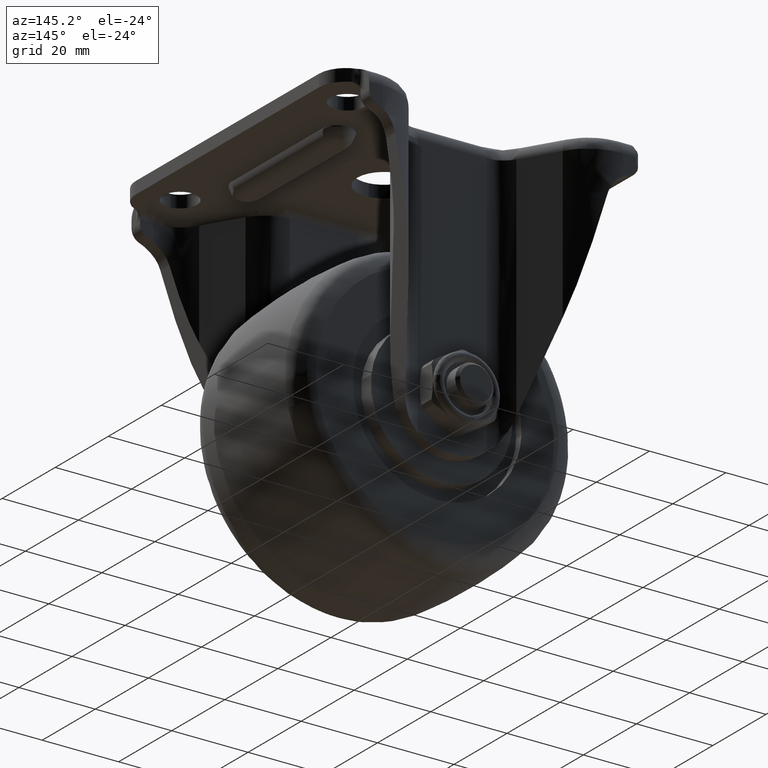
[diagram: clean part render]
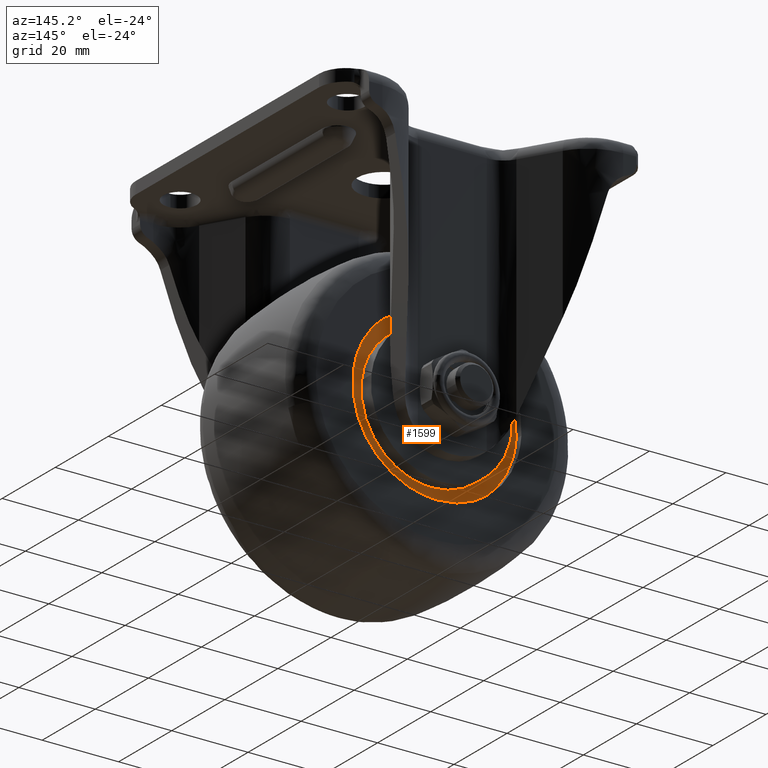
[diagram: same view with one face highlighted and labeled with its STEP entity id]
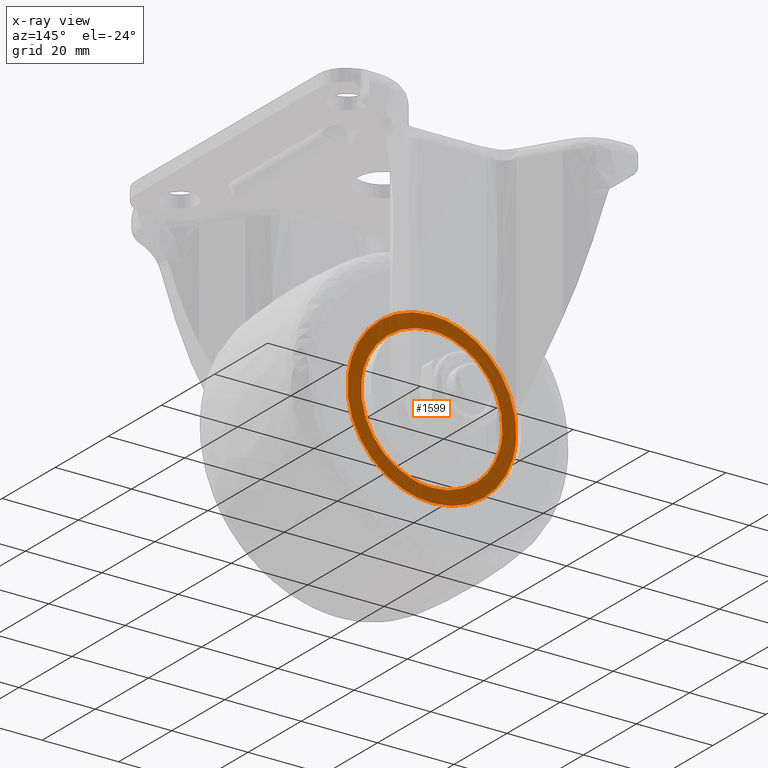
[diagram: x-ray of the same camera — body ghosted, the highlighted face saturated]
A machine part, auxiliary view. The second image highlights one B-rep face of the part: STEP entity #1599.
The next image is the same camera in x-ray: the body ghosted, the highlighted face saturated — about 6% of this face is hidden behind the body in this view.
In plain terms, the highlighted face is a freeform B-spline surface patch.
Its self-contained STEP definition (entity closure, byte-faithful):
#472=CARTESIAN_POINT('',(-22.078743534378859,18.0,-63.850380754807773));
#473=VERTEX_POINT('',#472);
#479=CARTESIAN_POINT('',(0.0,18.0,-84.620001000000002));
#480=VERTEX_POINT('',#479);
#481=CARTESIAN_POINT('',(0.0,18.0,-84.620001000000002));
#482=CARTESIAN_POINT('',(-20.808431416299474,18.000000000000004,-84.620001000000016));
#483=CARTESIAN_POINT('',(-22.078743534378852,18.000000000000004,-63.850380754807780));
#491=(BOUNDED_CURVE()B_SPLINE_CURVE(2,(#481,#482,#483),.UNSPECIFIED.,.F.,.U.)B_SPLINE_CURVE_WITH_KNOTS((3,3),(0.500000000000000,0.739333063843685),.UNSPECIFIED.)CURVE()GEOMETRIC_REPRESENTATION_ITEM()RATIONAL_B_SPLINE_CURVE((1.0,0.719603874249350,0.976072259425118))REPRESENTATION_ITEM(''));
#492=EDGE_CURVE('',#480,#473,#491,.T.);
#494=CARTESIAN_POINT('',(21.965373121239349,18.0,-59.889094432080142));
#495=VERTEX_POINT('',#494);
#496=CARTESIAN_POINT('',(21.965373121239356,18.0,-59.889094432080142));
#497=CARTESIAN_POINT('',(22.120000999999995,18.000000000000004,-61.189968386919674));
#498=CARTESIAN_POINT('',(22.120000999999998,18.0,-62.500000000000000));
#499=CARTESIAN_POINT('',(22.120000999999998,18.000000000000007,-84.620001000000002));
#500=CARTESIAN_POINT('',(0.0,18.0,-84.620001000000002));
#508=(BOUNDED_CURVE()B_SPLINE_CURVE(2,(#496,#497,#498,#499,#500),.UNSPECIFIED.,.F.,.U.)B_SPLINE_CURVE_WITH_KNOTS((3,2,3),(0.229562564465185,0.250000000000000,0.500000000000000),.UNSPECIFIED.)CURVE()GEOMETRIC_REPRESENTATION_ITEM()RATIONAL_B_SPLINE_CURVE((0.956026932452786,0.976056054887663,1.0,0.707106781186547,1.0))REPRESENTATION_ITEM(''));
#509=EDGE_CURVE('',#495,#480,#508,.T.);
#553=CARTESIAN_POINT('',(0.0,18.0,-40.379998999999998));
#554=VERTEX_POINT('',#553);
#555=CARTESIAN_POINT('',(0.0,18.0,-40.379998999999998));
#556=CARTESIAN_POINT('',(19.646432049422355,18.000000000000004,-40.379998999999998));
#557=CARTESIAN_POINT('',(21.965373121239356,18.0,-59.889094432080142));
#565=(BOUNDED_CURVE()B_SPLINE_CURVE(2,(#555,#556,#557),.UNSPECIFIED.,.F.,.U.)B_SPLINE_CURVE_WITH_KNOTS((3,3),(0.0,0.229562564465185),.UNSPECIFIED.)CURVE()GEOMETRIC_REPRESENTATION_ITEM()RATIONAL_B_SPLINE_CURVE((1.0,0.731050726298885,0.956026932452786))REPRESENTATION_ITEM(''));
#566=EDGE_CURVE('',#554,#495,#565,.T.);
#568=CARTESIAN_POINT('',(-22.078743534378852,18.000000000000004,-63.850380754807780));
#569=CARTESIAN_POINT('',(-22.120001000000006,18.000000000000004,-63.175820636115517));
#570=CARTESIAN_POINT('',(-22.120000999999998,18.0,-62.500000000000000));
#571=CARTESIAN_POINT('',(-22.120000999999998,18.000000000000007,-40.379998999999991));
#572=CARTESIAN_POINT('',(0.0,18.0,-40.379998999999998));
#580=(BOUNDED_CURVE()B_SPLINE_CURVE(2,(#568,#569,#570,#571,#572),.UNSPECIFIED.,.F.,.U.)B_SPLINE_CURVE_WITH_KNOTS((3,2,3),(0.739333063843685,0.750000000000000,1.0),.UNSPECIFIED.)CURVE()GEOMETRIC_REPRESENTATION_ITEM()RATIONAL_B_SPLINE_CURVE((0.976072259425118,0.987502906937197,1.0,0.707106781186547,1.0))REPRESENTATION_ITEM(''));
#581=EDGE_CURVE('',#473,#554,#580,.T.);
#624=CARTESIAN_POINT('',(18.370679100404381,17.999999999999091,-60.316390742514258));
#625=VERTEX_POINT('',#624);
#626=CARTESIAN_POINT('',(0.0,18.0,-81.0));
#627=VERTEX_POINT('',#626);
#628=CARTESIAN_POINT('',(18.370679100404384,17.999999999999091,-60.316390742514258));
#629=CARTESIAN_POINT('',(18.499999999999996,18.0,-61.404365955574157));
#630=CARTESIAN_POINT('',(18.500000000000000,18.0,-62.500000000000000));
#631=CARTESIAN_POINT('',(18.500000000000000,18.000000000000007,-81.0));
#632=CARTESIAN_POINT('',(0.0,18.0,-81.0));
#640=(BOUNDED_CURVE()B_SPLINE_CURVE(2,(#628,#629,#630,#631,#632),.UNSPECIFIED.,.F.,.U.)B_SPLINE_CURVE_WITH_KNOTS((3,2,3),(0.229562695076233,0.250000000000000,0.500000000000000),.UNSPECIFIED.)CURVE()GEOMETRIC_REPRESENTATION_ITEM()RATIONAL_B_SPLINE_CURVE((0.956027188456166,0.976056207908023,1.0,0.707106781186548,1.0))REPRESENTATION_ITEM(''));
#641=EDGE_CURVE('',#625,#627,#640,.T.);
#643=CARTESIAN_POINT('',(-18.465494910213920,18.000000000000679,-63.629379351907680));
#644=VERTEX_POINT('',#643);
#645=CARTESIAN_POINT('',(0.0,18.0,-81.0));
#646=CARTESIAN_POINT('',(-17.403079828192418,18.000000000000004,-80.999999999999986));
#647=CARTESIAN_POINT('',(-18.465494910213920,18.000000000000679,-63.629379351907687));
#655=(BOUNDED_CURVE()B_SPLINE_CURVE(2,(#645,#646,#647),.UNSPECIFIED.,.F.,.U.)B_SPLINE_CURVE_WITH_KNOTS((3,3),(0.500000000000000,0.739333136321181),.UNSPECIFIED.)CURVE()GEOMETRIC_REPRESENTATION_ITEM()RATIONAL_B_SPLINE_CURVE((1.0,0.719603789336682,0.976072414758377))REPRESENTATION_ITEM(''));
#656=EDGE_CURVE('',#627,#644,#655,.T.);
#723=CARTESIAN_POINT('',(0.0,18.0,-44.0));
#724=VERTEX_POINT('',#723);
#725=CARTESIAN_POINT('',(0.0,18.0,-44.0));
#726=CARTESIAN_POINT('',(16.431250422831418,18.000000000000007,-44.000000000000007));
#727=CARTESIAN_POINT('',(18.370679100404384,17.999999999999091,-60.316390742514258));
#735=(BOUNDED_CURVE()B_SPLINE_CURVE(2,(#725,#726,#727),.UNSPECIFIED.,.F.,.U.)B_SPLINE_CURVE_WITH_KNOTS((3,3),(0.0,0.229562695076233),.UNSPECIFIED.)CURVE()GEOMETRIC_REPRESENTATION_ITEM()RATIONAL_B_SPLINE_CURVE((1.0,0.731050573278525,0.956027188456166))REPRESENTATION_ITEM(''));
#736=EDGE_CURVE('',#724,#625,#735,.T.);
#770=CARTESIAN_POINT('',(-18.465494910213920,18.000000000000679,-63.629379351907687));
#771=CARTESIAN_POINT('',(-18.500000000000000,18.0,-63.065216780163396));
#772=CARTESIAN_POINT('',(-18.500000000000000,18.0,-62.500000000000000));
#773=CARTESIAN_POINT('',(-18.500000000000000,18.000000000000007,-43.999999999999993));
#774=CARTESIAN_POINT('',(0.0,18.0,-44.0));
#782=(BOUNDED_CURVE()B_SPLINE_CURVE(2,(#770,#771,#772,#773,#774),.UNSPECIFIED.,.F.,.U.)B_SPLINE_CURVE_WITH_KNOTS((3,2,3),(0.739333136321181,0.750000000000000,1.0),.UNSPECIFIED.)CURVE()GEOMETRIC_REPRESENTATION_ITEM()RATIONAL_B_SPLINE_CURVE((0.976072414758377,0.987502991849866,1.0,0.707106781186548,1.0))REPRESENTATION_ITEM(''));
#783=EDGE_CURVE('',#644,#724,#782,.T.);
#1582=CARTESIAN_POINT('',(-24.329252294165219,18.0,-86.829791090621740));
#1583=CARTESIAN_POINT('',(-24.329252294165219,18.0,-38.170209700451160));
#1584=CARTESIAN_POINT('',(24.329386776555030,18.0,-86.829791090621725));
#1585=CARTESIAN_POINT('',(24.329386776555030,18.0,-38.170209700451160));
#1586=B_SPLINE_SURFACE_WITH_KNOTS('',1,1,((#1582,#1584),(#1583,#1585)),.UNSPECIFIED.,.F.,.F.,.U.,(2,2),(2,2),(0.0,48.659581390170580),(0.0,48.658639070720241),.UNSPECIFIED.);
#1587=ORIENTED_EDGE('',*,*,#566,.T.);
#1588=ORIENTED_EDGE('',*,*,#509,.T.);
#1589=ORIENTED_EDGE('',*,*,#492,.T.);
#1590=ORIENTED_EDGE('',*,*,#581,.T.);
#1591=EDGE_LOOP('',(#1587,#1588,#1589,#1590));
#1592=FACE_OUTER_BOUND('',#1591,.T.);
#1593=ORIENTED_EDGE('',*,*,#656,.F.);
#1594=ORIENTED_EDGE('',*,*,#641,.F.);
#1595=ORIENTED_EDGE('',*,*,#736,.F.);
#1596=ORIENTED_EDGE('',*,*,#783,.F.);
#1597=EDGE_LOOP('',(#1593,#1594,#1595,#1596));
#1598=FACE_BOUND('',#1597,.T.);
#1599=ADVANCED_FACE('',(#1592,#1598),#1586,.T.);